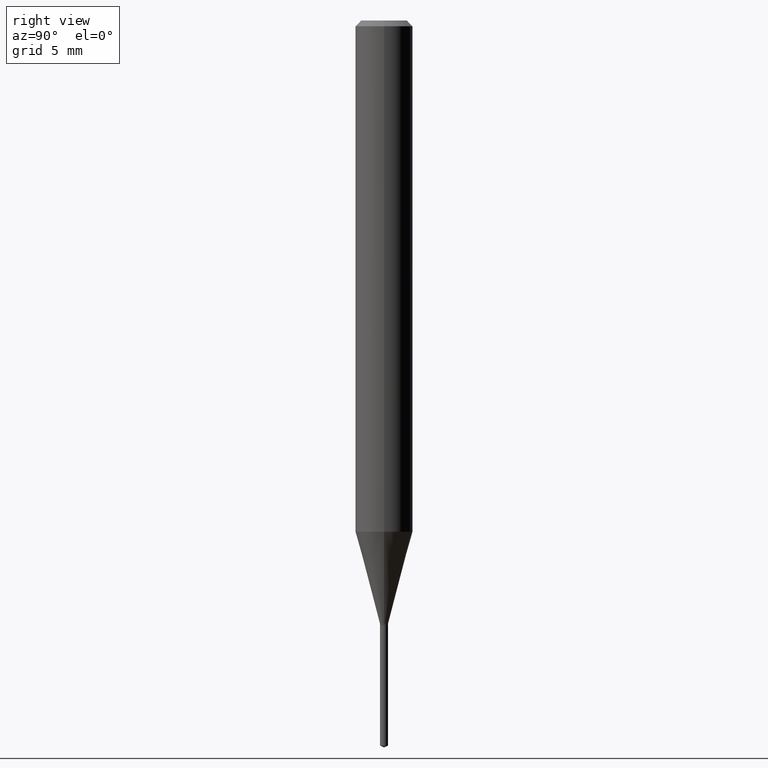
[diagram: clean part render]
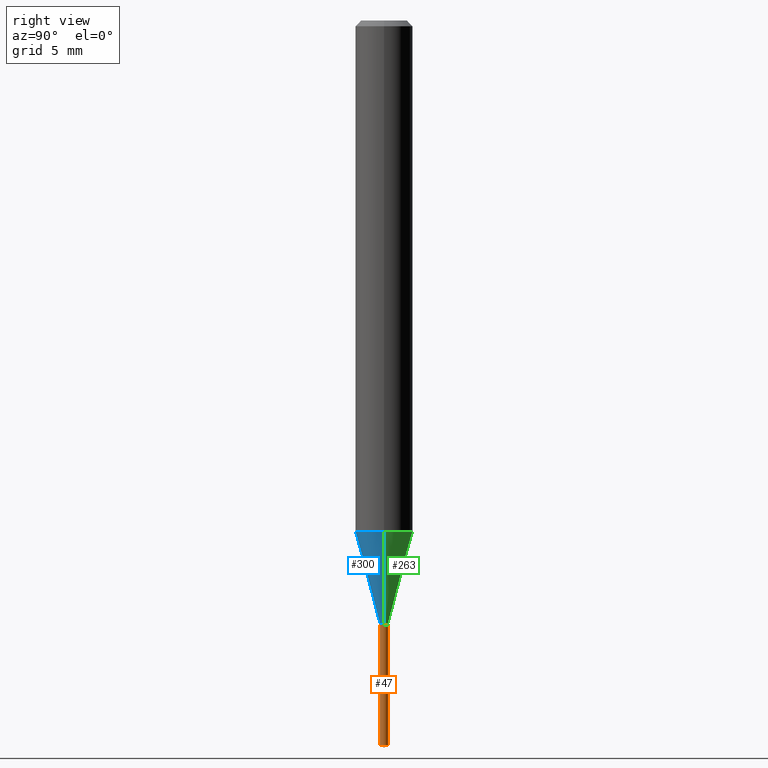
[diagram: same view with three faces highlighted in distinct colors, each labeled with its STEP entity id]
A machine part, right view with three faces highlighted in distinct colors.
Their STEP definitions:

[orange] entity #47 — the highlighted cylindrical surface (edge-blend (fillet) strip) has radius 0.2095 mm, axis along (-0, 0, 1).
#5 = AXIS2_PLACEMENT_3D ( 'NONE', #240, #206, #481 ) ;
#10 = ORIENTED_EDGE ( 'NONE', *, *, #320, .F. ) ;
#16 = DIRECTION ( 'NONE',  ( -6.982962677686265133E-15, -1.000000000000000000, 0.000000000000000000 ) ) ;
#31 = CARTESIAN_POINT ( 'NONE',  ( -5.760944209088126808E-17, -0.008250000000004344136, -1.244099999999999984 ) ) ;
#38 = VERTEX_POINT ( 'NONE', #31 ) ;
#39 = LINE ( 'NONE', #191, #98 ) ;
#41 = ORIENTED_EDGE ( 'NONE', *, *, #78, .T. ) ;
#47 = ADVANCED_FACE ( 'NONE', ( #91 ), #169, .T. ) ;
#56 = DIRECTION ( 'NONE',  ( -6.982962677686265133E-15, -1.000000000000000000, 0.000000000000000000 ) ) ;
#78 = EDGE_CURVE ( 'NONE', #466, #488, #327, .T. ) ;
#88 = VERTEX_POINT ( 'NONE', #390 ) ;
#90 = VECTOR ( 'NONE', #166, 39.37007874015748143 ) ;
#91 = FACE_OUTER_BOUND ( 'NONE', #292, .T. ) ;
#94 = CARTESIAN_POINT ( 'NONE',  ( 3.042407741774928155E-29, -4.343751933654757151E-15, -1.244099999999999984 ) ) ;
#98 = VECTOR ( 'NONE', #338, 39.37007874015748143 ) ;
#114 = EDGE_CURVE ( 'NONE', #88, #466, #274, .T. ) ;
#148 = EDGE_CURVE ( 'NONE', #38, #488, #430, .T. ) ;
#166 = DIRECTION ( 'NONE',  ( -2.445453018118844278E-29, 3.491503948252676363E-15, 1.000000000000000000 ) ) ;
#169 = CYLINDRICAL_SURFACE ( 'NONE', #328, 0.008250000000000000389 ) ;
#191 = CARTESIAN_POINT ( 'NONE',  ( -5.760944209088126808E-17, -0.008250000000004344136, -1.244099999999999984 ) ) ;
#204 = CARTESIAN_POINT ( 'NONE',  ( 3.042407741774928155E-29, -4.343751933654757151E-15, -1.244099999999999984 ) ) ;
#206 = DIRECTION ( 'NONE',  ( -2.445453018118844559E-29, 3.491503948252676758E-15, 1.000000000000000000 ) ) ;
#230 = ORIENTED_EDGE ( 'NONE', *, *, #148, .F. ) ;
#240 = CARTESIAN_POINT ( 'NONE',  ( 3.649254151213318741E-29, -5.210178979620655699E-15, -1.492252961820221158 ) ) ;
#243 = AXIS2_PLACEMENT_3D ( 'NONE', #94, #249, #16 ) ;
#249 = DIRECTION ( 'NONE',  ( -2.445453018118844559E-29, 3.491503948252676758E-15, 1.000000000000000000 ) ) ;
#274 = CIRCLE ( 'NONE', #5, 0.008250000000000000389 ) ;
#292 = EDGE_LOOP ( 'NONE', ( #396, #41, #230, #10 ) ) ;
#320 = EDGE_CURVE ( 'NONE', #88, #38, #39, .T. ) ;
#327 = LINE ( 'NONE', #444, #90 ) ;
#328 = AXIS2_PLACEMENT_3D ( 'NONE', #204, #398, #56 ) ;
#338 = DIRECTION ( 'NONE',  ( -2.445453018118844278E-29, 3.491503948252676363E-15, 1.000000000000000000 ) ) ;
#344 = CARTESIAN_POINT ( 'NONE',  ( 5.861977570024480222E-17, 0.008249999999995656641, -1.244099999999999984 ) ) ;
#386 = CARTESIAN_POINT ( 'NONE',  ( 5.861977570024476524E-17, 0.008249999999994791014, -1.492252961820221158 ) ) ;
#390 = CARTESIAN_POINT ( 'NONE',  ( -5.760944209087521604E-17, -0.008250000000005211498, -1.492252961820221158 ) ) ;
#396 = ORIENTED_EDGE ( 'NONE', *, *, #114, .T. ) ;
#398 = DIRECTION ( 'NONE',  ( -2.445453018118844559E-29, 3.491503948252676758E-15, 1.000000000000000000 ) ) ;
#430 = CIRCLE ( 'NONE', #243, 0.008250000000000000389 ) ;
#444 = CARTESIAN_POINT ( 'NONE',  ( 5.861977570023867622E-17, 0.008249999999995656641, -1.244099999999999984 ) ) ;
#466 = VERTEX_POINT ( 'NONE', #386 ) ;
#481 = DIRECTION ( 'NONE',  ( -6.982962677686265133E-15, -1.000000000000000000, 0.000000000000000000 ) ) ;
#488 = VERTEX_POINT ( 'NONE', #344 ) ;

[blue] entity #300 — the highlighted conical surface has half-angle 15 deg.
#57 = AXIS2_PLACEMENT_3D ( 'NONE', #318, #142, #388 ) ;
#59 = EDGE_CURVE ( 'NONE', #294, #449, #471, .T. ) ;
#62 = CARTESIAN_POINT ( 'NONE',  ( 0.008250000000000000389, -4.392632672398560829E-15, -1.241600000000000037 ) ) ;
#76 = ORIENTED_EDGE ( 'NONE', *, *, #107, .F. ) ;
#77 = DIRECTION ( 'NONE',  ( -2.445468806185136597E-29, 3.491481338843145583E-15, 1.000000000000000000 ) ) ;
#81 = EDGE_LOOP ( 'NONE', ( #76, #269, #358, #158 ) ) ;
#107 = EDGE_CURVE ( 'NONE', #294, #267, #484, .T. ) ;
#120 = CARTESIAN_POINT ( 'NONE',  ( 3.036294069759465269E-29, -4.335023230307649634E-15, -1.241600000000000037 ) ) ;
#134 = VECTOR ( 'NONE', #361, 39.37007874015748854 ) ;
#136 = CARTESIAN_POINT ( 'NONE',  ( 2.572662087042671903E-29, -3.673079634195394404E-15, -1.052011818975500779 ) ) ;
#142 = DIRECTION ( 'NONE',  ( -2.445468806185136597E-29, 3.491481338843145583E-15, 1.000000000000000000 ) ) ;
#143 = CONICAL_SURFACE ( 'NONE', #392, 0.008250000000000000389, 0.2617993877991499074 ) ;
#158 = ORIENTED_EDGE ( 'NONE', *, *, #170, .F. ) ;
#163 = VERTEX_POINT ( 'NONE', #385 ) ;
#170 = EDGE_CURVE ( 'NONE', #267, #163, #275, .T. ) ;
#203 = EDGE_CURVE ( 'NONE', #449, #163, #468, .T. ) ;
#262 = CARTESIAN_POINT ( 'NONE',  ( -0.008250000000000000389, -4.279894935946284521E-15, -1.241600000000000037 ) ) ;
#267 = VERTEX_POINT ( 'NONE', #332 ) ;
#269 = ORIENTED_EDGE ( 'NONE', *, *, #59, .T. ) ;
#275 = CIRCLE ( 'NONE', #395, 0.05905000000000013710 ) ;
#288 = DIRECTION ( 'NONE',  ( 1.000000000000000000, -6.982962677686243834E-15, 0.000000000000000000 ) ) ;
#294 = VERTEX_POINT ( 'NONE', #262 ) ;
#300 = ADVANCED_FACE ( 'NONE', ( #367 ), #143, .T. ) ;
#306 = CARTESIAN_POINT ( 'NONE',  ( 0.008250000000000000389, -4.392632672398560829E-15, -1.241600000000000037 ) ) ;
#315 = DIRECTION ( 'NONE',  ( -0.2588190451025211836, 5.211531920934547886E-15, 0.9659258262890679791 ) ) ;
#318 = CARTESIAN_POINT ( 'NONE',  ( 3.036294069759465269E-29, -4.335023230307649634E-15, -1.241600000000000037 ) ) ;
#332 = CARTESIAN_POINT ( 'NONE',  ( -0.05905000000000013710, -3.253504148729054517E-15, -1.052011818975500779 ) ) ;
#358 = ORIENTED_EDGE ( 'NONE', *, *, #203, .T. ) ;
#361 = DIRECTION ( 'NONE',  ( 0.2588190451025211836, 1.565188264969622559E-15, 0.9659258262890679791 ) ) ;
#362 = CARTESIAN_POINT ( 'NONE',  ( -0.008250000000000000389, -4.276403454607441513E-15, -1.241600000000000037 ) ) ;
#367 = FACE_OUTER_BOUND ( 'NONE', #81, .T. ) ;
#385 = CARTESIAN_POINT ( 'NONE',  ( 0.05905000000000013710, -4.085423580312769324E-15, -1.052011818975500779 ) ) ;
#388 = DIRECTION ( 'NONE',  ( 1.000000000000000000, -6.982962677686243834E-15, 0.000000000000000000 ) ) ;
#391 = VECTOR ( 'NONE', #315, 39.37007874015748854 ) ;
#392 = AXIS2_PLACEMENT_3D ( 'NONE', #120, #77, #288 ) ;
#394 = DIRECTION ( 'NONE',  ( -2.445468806185136597E-29, 3.491481338843145583E-15, 1.000000000000000000 ) ) ;
#395 = AXIS2_PLACEMENT_3D ( 'NONE', #136, #394, #438 ) ;
#438 = DIRECTION ( 'NONE',  ( 1.000000000000000000, -6.982962677686264344E-15, 0.000000000000000000 ) ) ;
#449 = VERTEX_POINT ( 'NONE', #306 ) ;
#468 = LINE ( 'NONE', #62, #134 ) ;
#471 = CIRCLE ( 'NONE', #57, 0.008250000000000000389 ) ;
#484 = LINE ( 'NONE', #362, #391 ) ;

[green] entity #263 — the highlighted conical surface has half-angle 15 deg.
#1 = ORIENTED_EDGE ( 'NONE', *, *, #370, .F. ) ;
#13 = EDGE_CURVE ( 'NONE', #449, #294, #167, .T. ) ;
#43 = DIRECTION ( 'NONE',  ( -2.445468806185136597E-29, 3.491481338843145583E-15, 1.000000000000000000 ) ) ;
#44 = ORIENTED_EDGE ( 'NONE', *, *, #13, .T. ) ;
#62 = CARTESIAN_POINT ( 'NONE',  ( 0.008250000000000000389, -4.392632672398560829E-15, -1.241600000000000037 ) ) ;
#100 = ORIENTED_EDGE ( 'NONE', *, *, #107, .T. ) ;
#104 = CIRCLE ( 'NONE', #309, 0.05905000000000013710 ) ;
#107 = EDGE_CURVE ( 'NONE', #294, #267, #484, .T. ) ;
#131 = AXIS2_PLACEMENT_3D ( 'NONE', #264, #198, #380 ) ;
#134 = VECTOR ( 'NONE', #361, 39.37007874015748854 ) ;
#145 = DIRECTION ( 'NONE',  ( -2.445468806185136597E-29, 3.491481338843145583E-15, 1.000000000000000000 ) ) ;
#163 = VERTEX_POINT ( 'NONE', #385 ) ;
#167 = CIRCLE ( 'NONE', #131, 0.008250000000000000389 ) ;
#193 = ORIENTED_EDGE ( 'NONE', *, *, #203, .F. ) ;
#195 = DIRECTION ( 'NONE',  ( 1.000000000000000000, -6.982962677686264344E-15, 0.000000000000000000 ) ) ;
#198 = DIRECTION ( 'NONE',  ( -2.445468806185136597E-29, 3.491481338843145583E-15, 1.000000000000000000 ) ) ;
#203 = EDGE_CURVE ( 'NONE', #449, #163, #468, .T. ) ;
#221 = CARTESIAN_POINT ( 'NONE',  ( 3.036294069759465269E-29, -4.335023230307649634E-15, -1.241600000000000037 ) ) ;
#248 = EDGE_LOOP ( 'NONE', ( #44, #100, #1, #193 ) ) ;
#262 = CARTESIAN_POINT ( 'NONE',  ( -0.008250000000000000389, -4.279894935946284521E-15, -1.241600000000000037 ) ) ;
#263 = ADVANCED_FACE ( 'NONE', ( #295 ), #354, .T. ) ;
#264 = CARTESIAN_POINT ( 'NONE',  ( 3.036294069759465269E-29, -4.335023230307649634E-15, -1.241600000000000037 ) ) ;
#267 = VERTEX_POINT ( 'NONE', #332 ) ;
#294 = VERTEX_POINT ( 'NONE', #262 ) ;
#295 = FACE_OUTER_BOUND ( 'NONE', #248, .T. ) ;
#306 = CARTESIAN_POINT ( 'NONE',  ( 0.008250000000000000389, -4.392632672398560829E-15, -1.241600000000000037 ) ) ;
#309 = AXIS2_PLACEMENT_3D ( 'NONE', #402, #43, #195 ) ;
#315 = DIRECTION ( 'NONE',  ( -0.2588190451025211836, 5.211531920934547886E-15, 0.9659258262890679791 ) ) ;
#329 = AXIS2_PLACEMENT_3D ( 'NONE', #221, #145, #406 ) ;
#332 = CARTESIAN_POINT ( 'NONE',  ( -0.05905000000000013710, -3.253504148729054517E-15, -1.052011818975500779 ) ) ;
#354 = CONICAL_SURFACE ( 'NONE', #329, 0.008250000000000000389, 0.2617993877991499074 ) ;
#361 = DIRECTION ( 'NONE',  ( 0.2588190451025211836, 1.565188264969622559E-15, 0.9659258262890679791 ) ) ;
#362 = CARTESIAN_POINT ( 'NONE',  ( -0.008250000000000000389, -4.276403454607441513E-15, -1.241600000000000037 ) ) ;
#370 = EDGE_CURVE ( 'NONE', #163, #267, #104, .T. ) ;
#380 = DIRECTION ( 'NONE',  ( 1.000000000000000000, -6.982962677686243834E-15, 0.000000000000000000 ) ) ;
#385 = CARTESIAN_POINT ( 'NONE',  ( 0.05905000000000013710, -4.085423580312769324E-15, -1.052011818975500779 ) ) ;
#391 = VECTOR ( 'NONE', #315, 39.37007874015748854 ) ;
#402 = CARTESIAN_POINT ( 'NONE',  ( 2.572662087042671903E-29, -3.673079634195394404E-15, -1.052011818975500779 ) ) ;
#406 = DIRECTION ( 'NONE',  ( 1.000000000000000000, -6.982962677686243834E-15, 0.000000000000000000 ) ) ;
#449 = VERTEX_POINT ( 'NONE', #306 ) ;
#468 = LINE ( 'NONE', #62, #134 ) ;
#484 = LINE ( 'NONE', #362, #391 ) ;